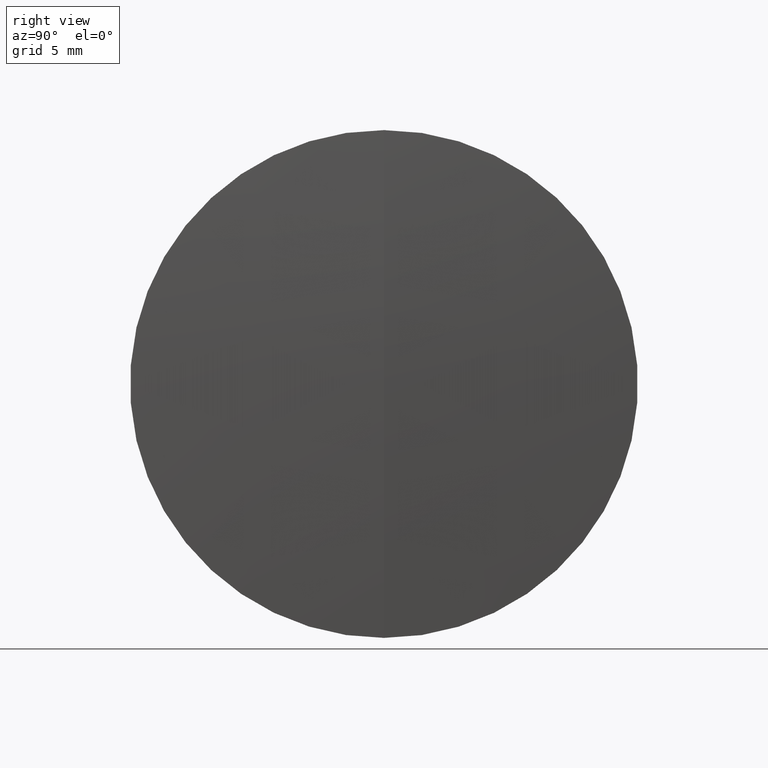
[diagram: clean part render]
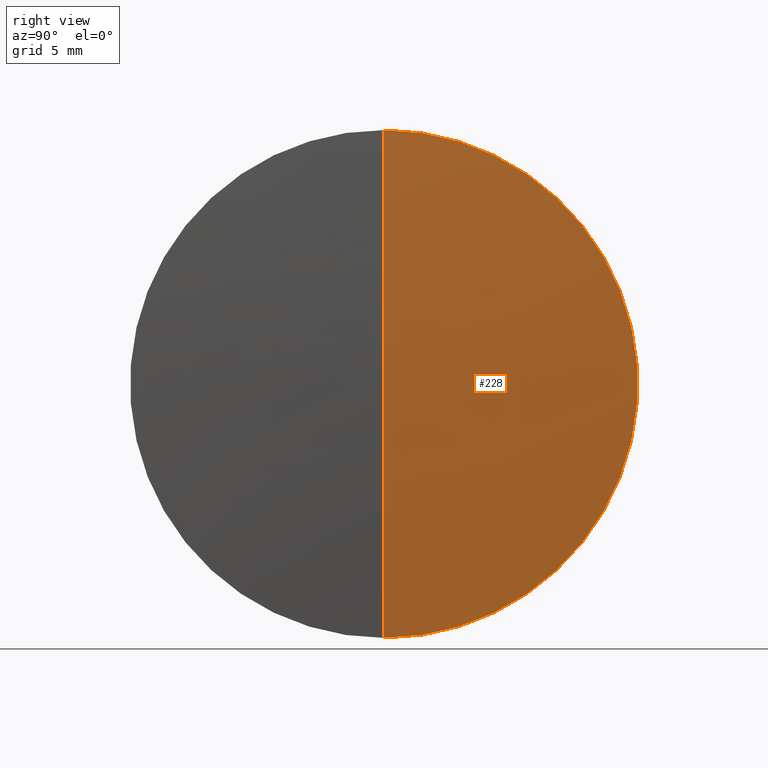
[diagram: same view with one face highlighted and labeled with its STEP entity id]
A machine part, right view. The second image highlights one B-rep face of the part: STEP entity #228.
In plain terms, the highlighted spherical surface has radius 216.3 mm.
Its self-contained STEP definition (entity closure, byte-faithful):
#11 = DIRECTION ( 'NONE',  ( 0.0000000000000000000, 0.0000000000000000000, 1.000000000000000000 ) ) ;
#13 = CARTESIAN_POINT ( 'NONE',  ( 319.2069652250824000, 0.0000000000000000000, 0.0000000000000000000 ) ) ;
#18 = AXIS2_PLACEMENT_3D ( 'NONE', #276, #262, #50 ) ;
#33 = CIRCLE ( 'NONE', #237, 216.2999999999999000 ) ;
#38 = AXIS2_PLACEMENT_3D ( 'NONE', #148, #273, #11 ) ;
#46 = FACE_OUTER_BOUND ( 'NONE', #165, .T. ) ;
#50 = DIRECTION ( 'NONE',  ( 0.0000000000000000000, 0.0000000000000000000, 1.000000000000000000 ) ) ;
#51 = CARTESIAN_POINT ( 'NONE',  ( 534.9862274353326900, 0.0000000000000000000, 14.99999999999961500 ) ) ;
#53 = VERTEX_POINT ( 'NONE', #124 ) ;
#66 = ORIENTED_EDGE ( 'NONE', *, *, #240, .F. ) ;
#108 = DIRECTION ( 'NONE',  ( 0.0000000000000000000, -1.224646799147353200E-016, 1.000000000000000000 ) ) ;
#120 = DIRECTION ( 'NONE',  ( 0.0000000000000000000, -1.000000000000000000, 0.0000000000000000000 ) ) ;
#124 = CARTESIAN_POINT ( 'NONE',  ( 535.5069652250823500, 0.0000000000000000000, 1.324455513277862000E-014 ) ) ;
#137 = CARTESIAN_POINT ( 'NONE',  ( 319.2069652250824000, 0.0000000000000000000, 0.0000000000000000000 ) ) ;
#148 = CARTESIAN_POINT ( 'NONE',  ( 534.9862274353326900, 0.0000000000000000000, 0.0000000000000000000 ) ) ;
#165 = EDGE_LOOP ( 'NONE', ( #277, #194, #66 ) ) ;
#194 = ORIENTED_EDGE ( 'NONE', *, *, #204, .T. ) ;
#204 = EDGE_CURVE ( 'NONE', #53, #246, #33, .T. ) ;
#220 = EDGE_CURVE ( 'NONE', #53, #260, #313, .T. ) ;
#225 = CIRCLE ( 'NONE', #38, 14.99999999999961500 ) ;
#228 = ADVANCED_FACE ( 'NONE', ( #46 ), #256, .T. ) ;
#237 = AXIS2_PLACEMENT_3D ( 'NONE', #137, #296, #108 ) ;
#240 = EDGE_CURVE ( 'NONE', #260, #246, #225, .T. ) ;
#245 = DIRECTION ( 'NONE',  ( 0.0000000000000000000, 0.0000000000000000000, -1.000000000000000000 ) ) ;
#246 = VERTEX_POINT ( 'NONE', #336 ) ;
#256 = SPHERICAL_SURFACE ( 'NONE', #18, 216.2999999999999000 ) ;
#260 = VERTEX_POINT ( 'NONE', #51 ) ;
#262 = DIRECTION ( 'NONE',  ( 0.0000000000000000000, 1.000000000000000000, 0.0000000000000000000 ) ) ;
#273 = DIRECTION ( 'NONE',  ( -1.000000000000000000, -0.0000000000000000000, -0.0000000000000000000 ) ) ;
#276 = CARTESIAN_POINT ( 'NONE',  ( 319.2069652250824000, 0.0000000000000000000, 0.0000000000000000000 ) ) ;
#277 = ORIENTED_EDGE ( 'NONE', *, *, #220, .F. ) ;
#296 = DIRECTION ( 'NONE',  ( -0.0000000000000000000, 1.000000000000000000, 1.224646799147353200E-016 ) ) ;
#313 = CIRCLE ( 'NONE', #327, 216.2999999999999000 ) ;
#327 = AXIS2_PLACEMENT_3D ( 'NONE', #13, #120, #245 ) ;
#336 = CARTESIAN_POINT ( 'NONE',  ( 534.9862274353326900, 1.836970198720986600E-015, -14.99999999999961500 ) ) ;